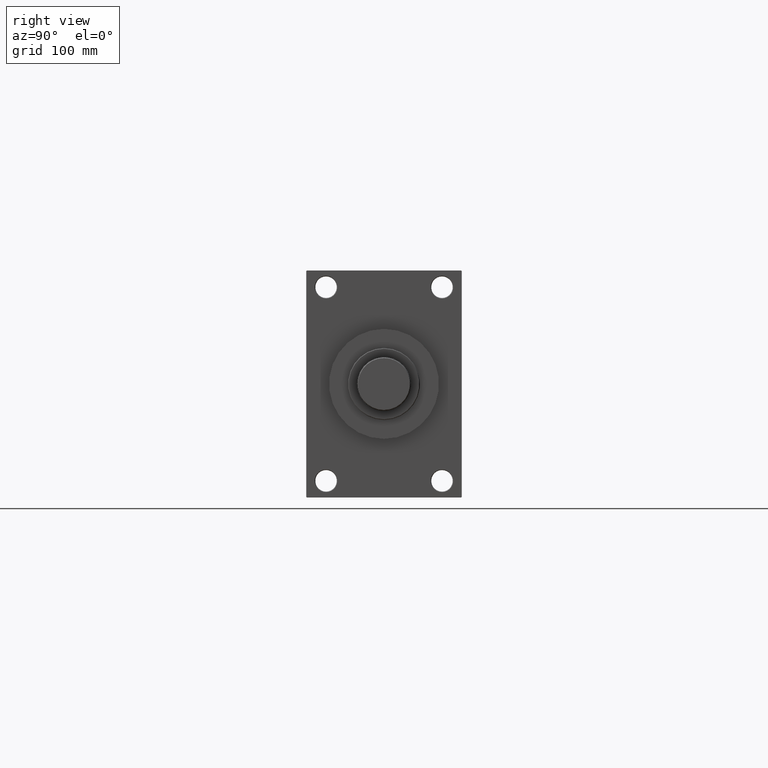
[diagram: clean part render]
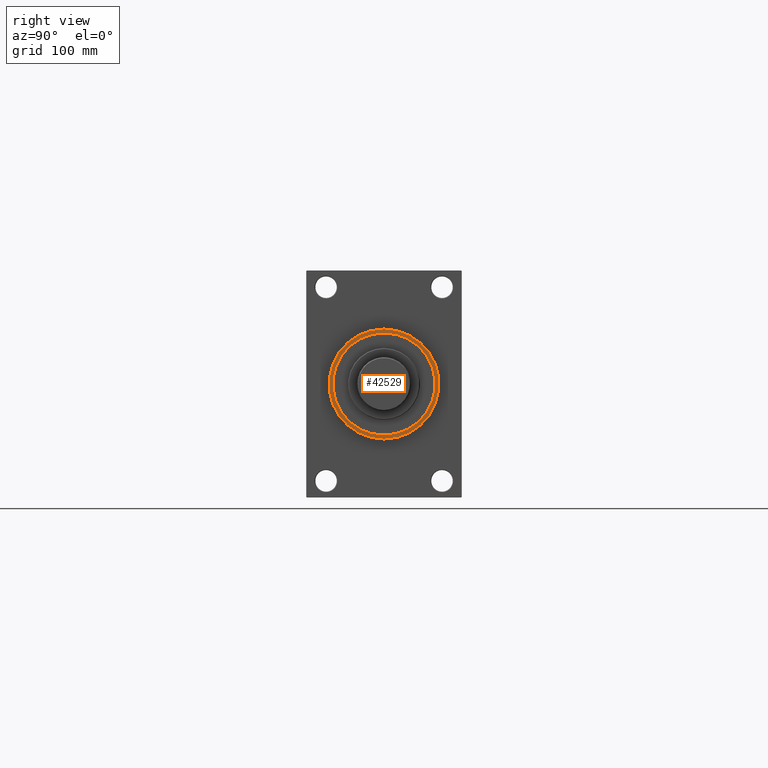
[diagram: same view with one face highlighted and labeled with its STEP entity id]
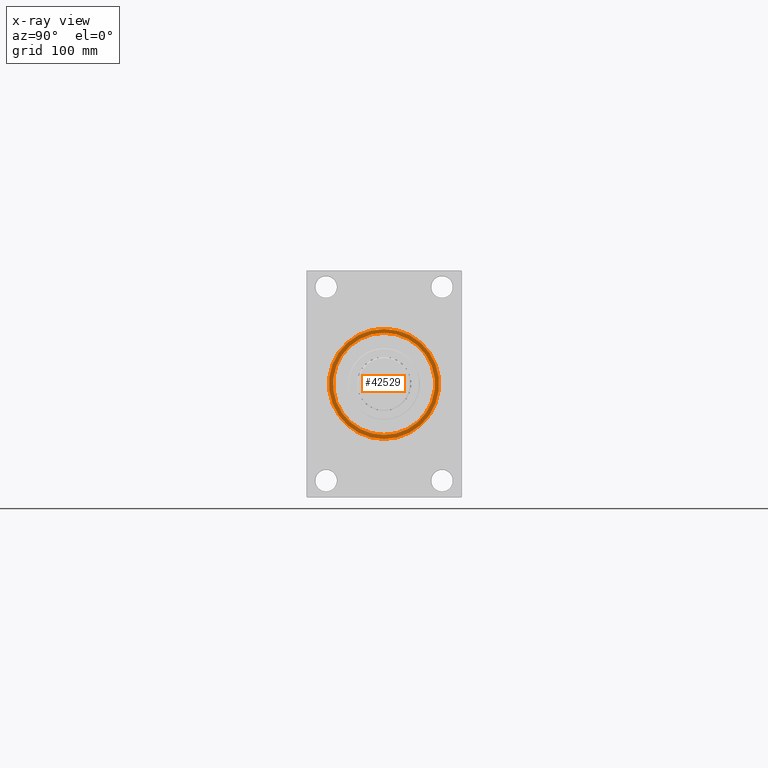
[diagram: x-ray of the same camera — body ghosted, the highlighted face saturated]
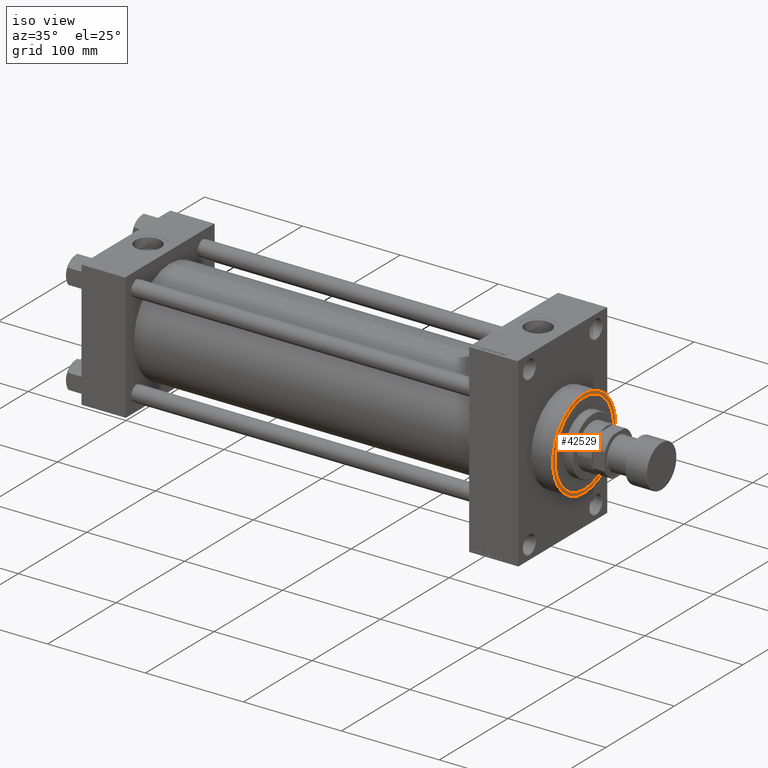
[diagram: same view with one face highlighted and labeled with its STEP entity id]
A machine part, right view. The second image highlights one B-rep face of the part: STEP entity #42529.
The next image is the same camera in x-ray: the body ghosted, the highlighted face saturated — about 0% of this face is hidden behind the body in this view.
A second angle (iso view) of the same face is appended — the face is thin or edge-on in the first view.
In plain terms, the highlighted planar face has unit normal (1, 0, 0).
Its self-contained STEP definition (entity closure, byte-faithful):
#1650 = AXIS2_PLACEMENT_3D ( 'NONE', #44119, #44354, #11509 ) ;
#2062 = DIRECTION ( 'NONE',  ( 0.000000000000000000, 0.000000000000000000, -1.000000000000000000 ) ) ;
#4660 = ORIENTED_EDGE ( 'NONE', *, *, #6078, .T. ) ;
#5202 = DIRECTION ( 'NONE',  ( 1.000000000000000000, 0.000000000000000000, 0.000000000000000000 ) ) ;
#5421 = VERTEX_POINT ( 'NONE', #45114 ) ;
#6078 = EDGE_CURVE ( 'NONE', #29116, #36677, #13313, .T. ) ;
#6535 = CIRCLE ( 'NONE', #44621, 46.00000000000000000 ) ;
#7127 = ORIENTED_EDGE ( 'NONE', *, *, #36446, .F. ) ;
#7692 = DIRECTION ( 'NONE',  ( 0.000000000000000000, 0.000000000000000000, -1.000000000000000000 ) ) ;
#7894 = CARTESIAN_POINT ( 'NONE',  ( 468.0000000000000000, 0.000000000000000000, 0.000000000000000000 ) ) ;
#8092 = CIRCLE ( 'NONE', #17434, 42.75000000000000000 ) ;
#11509 = DIRECTION ( 'NONE',  ( 0.000000000000000000, 0.000000000000000000, -1.000000000000000000 ) ) ;
#11854 = CARTESIAN_POINT ( 'NONE',  ( 468.0000000000000000, 5.633375276077824704E-15, -46.00000000000000000 ) ) ;
#12436 = ORIENTED_EDGE ( 'NONE', *, *, #21664, .F. ) ;
#13015 = CARTESIAN_POINT ( 'NONE',  ( 468.0000000000000000, 0.000000000000000000, 0.000000000000000000 ) ) ;
#13148 = EDGE_CURVE ( 'NONE', #36677, #29116, #6535, .T. ) ;
#13313 = CIRCLE ( 'NONE', #1650, 46.00000000000000000 ) ;
#13481 = DIRECTION ( 'NONE',  ( 0.000000000000000000, 0.000000000000000000, -1.000000000000000000 ) ) ;
#15322 = EDGE_LOOP ( 'NONE', ( #18664, #4660 ) ) ;
#16847 = AXIS2_PLACEMENT_3D ( 'NONE', #21515, #24203, #13481 ) ;
#17434 = AXIS2_PLACEMENT_3D ( 'NONE', #7894, #5202, #20038 ) ;
#18371 = CIRCLE ( 'NONE', #29234, 42.75000000000000000 ) ;
#18664 = ORIENTED_EDGE ( 'NONE', *, *, #13148, .T. ) ;
#19838 = DIRECTION ( 'NONE',  ( 1.000000000000000000, 0.000000000000000000, 0.000000000000000000 ) ) ;
#20038 = DIRECTION ( 'NONE',  ( 0.000000000000000000, 0.000000000000000000, -1.000000000000000000 ) ) ;
#21515 = CARTESIAN_POINT ( 'NONE',  ( 468.0000000000000000, 0.000000000000000000, 0.000000000000000000 ) ) ;
#21664 = EDGE_CURVE ( 'NONE', #38127, #5421, #18371, .T. ) ;
#24203 = DIRECTION ( 'NONE',  ( 1.000000000000000000, 0.000000000000000000, 0.000000000000000000 ) ) ;
#24246 = CARTESIAN_POINT ( 'NONE',  ( 468.0000000000000000, 0.000000000000000000, -42.75000000000000000 ) ) ;
#25161 = FACE_OUTER_BOUND ( 'NONE', #15322, .T. ) ;
#26905 = DIRECTION ( 'NONE',  ( 1.000000000000000000, 0.000000000000000000, 0.000000000000000000 ) ) ;
#29116 = VERTEX_POINT ( 'NONE', #11854 ) ;
#29234 = AXIS2_PLACEMENT_3D ( 'NONE', #13015, #19838, #2062 ) ;
#34987 = EDGE_LOOP ( 'NONE', ( #12436, #7127 ) ) ;
#35767 = CARTESIAN_POINT ( 'NONE',  ( 468.0000000000000000, 0.000000000000000000, 46.00000000000000000 ) ) ;
#36446 = EDGE_CURVE ( 'NONE', #5421, #38127, #8092, .T. ) ;
#36677 = VERTEX_POINT ( 'NONE', #35767 ) ;
#38127 = VERTEX_POINT ( 'NONE', #24246 ) ;
#39750 = FACE_BOUND ( 'NONE', #34987, .T. ) ;
#42529 = ADVANCED_FACE ( 'NONE', ( #39750, #25161 ), #46810, .T. ) ;
#44119 = CARTESIAN_POINT ( 'NONE',  ( 468.0000000000000000, 0.000000000000000000, 0.000000000000000000 ) ) ;
#44354 = DIRECTION ( 'NONE',  ( 1.000000000000000000, 0.000000000000000000, 0.000000000000000000 ) ) ;
#44621 = AXIS2_PLACEMENT_3D ( 'NONE', #44909, #26905, #7692 ) ;
#44909 = CARTESIAN_POINT ( 'NONE',  ( 468.0000000000000000, 0.000000000000000000, 0.000000000000000000 ) ) ;
#45114 = CARTESIAN_POINT ( 'NONE',  ( 468.0000000000000000, 5.235365066354935472E-15, 42.75000000000000000 ) ) ;
#46810 = PLANE ( 'NONE',  #16847 ) ;